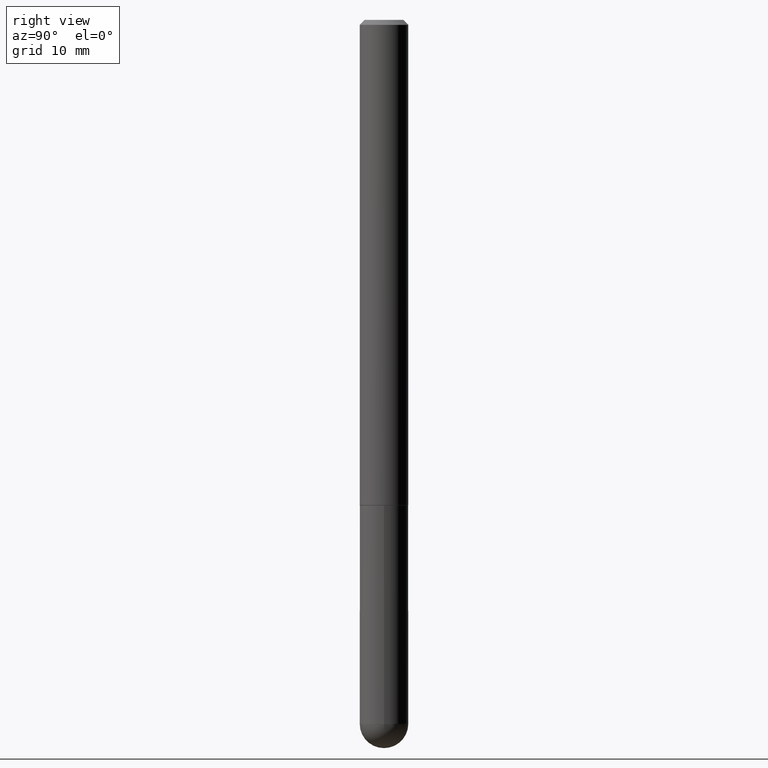
[diagram: clean part render]
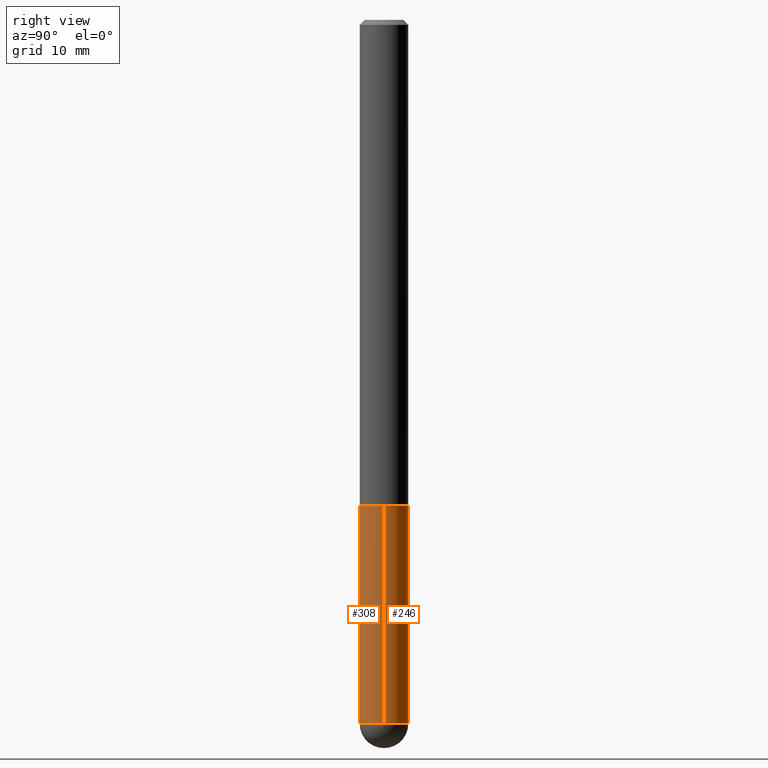
[diagram: same view with one multi-face feature highlighted, each face labeled with its STEP entity id]
A machine part, right view. The highlighted faces form ONE feature: a constant-radius fillet chain: 2 tangent blend faces with common blend radius 2.5006 mm. The faces share edges in the B-rep.
Their STEP definitions:
[1] entity #246 (Cylinder):
#3 = ORIENTED_EDGE ( 'NONE', *, *, #26, .T. ) ;
#4 = CARTESIAN_POINT ( 'NONE',  ( 6.874726756182819798E-16, 0.09844999999998993445, -2.854350000000000165 ) ) ;
#8 = CARTESIAN_POINT ( 'NONE',  ( 0.09844999999999998197, -6.874726756182128559E-16, 4.800596035771097813E-30 ) ) ;
#18 = CARTESIAN_POINT ( 'NONE',  ( 4.813905344975440714E-29, -6.872981015512730918E-15, -1.968499999999999694 ) ) ;
#26 = EDGE_CURVE ( 'NONE', #376, #54, #104, .T. ) ;
#27 = EDGE_CURVE ( 'NONE', #179, #233, #86, .T. ) ;
#30 = ORIENTED_EDGE ( 'NONE', *, *, #235, .F. ) ;
#43 = CARTESIAN_POINT ( 'NONE',  ( 6.980223886934544207E-29, -9.965909759526929881E-15, -2.854349999999999721 ) ) ;
#53 = CARTESIAN_POINT ( 'NONE',  ( 6.980223886934544207E-29, -9.965909759526929881E-15, -2.854349999999999721 ) ) ;
#54 = VERTEX_POINT ( 'NONE', #172 ) ;
#74 = CARTESIAN_POINT ( 'NONE',  ( -0.09844999999999998197, -7.719916064164013473E-15, -2.854349999999999721 ) ) ;
#77 = EDGE_LOOP ( 'NONE', ( #392, #3, #130, #30, #297 ) ) ;
#86 = CIRCLE ( 'NONE', #331, 0.09844999999999998197 ) ;
#102 = VERTEX_POINT ( 'NONE', #209 ) ;
#104 = LINE ( 'NONE', #220, #265 ) ;
#122 = CYLINDRICAL_SURFACE ( 'NONE', #391, 0.09844999999999998197 ) ;
#124 = CIRCLE ( 'NONE', #171, 0.09844999999999999585 ) ;
#129 = DIRECTION ( 'NONE',  ( 1.000000000000000000, -6.982962677686276177E-15, 0.000000000000000000 ) ) ;
#130 = ORIENTED_EDGE ( 'NONE', *, *, #339, .F. ) ;
#137 = DIRECTION ( 'NONE',  ( -2.445468806185136597E-29, 3.491481338843145583E-15, 1.000000000000000000 ) ) ;
#158 = DIRECTION ( 'NONE',  ( -2.445468806185136877E-29, 3.491481338843145188E-15, 1.000000000000000000 ) ) ;
#169 = DIRECTION ( 'NONE',  ( 1.000000000000000000, -6.982962677686276177E-15, 0.000000000000000000 ) ) ;
#171 = AXIS2_PLACEMENT_3D ( 'NONE', #18, #137, #317 ) ;
#172 = CARTESIAN_POINT ( 'NONE',  ( -0.09844999999999999585, -7.719916064164011895E-15, -1.968499999999999694 ) ) ;
#179 = VERTEX_POINT ( 'NONE', #216 ) ;
#201 = DIRECTION ( 'NONE',  ( -2.445468806185136877E-29, 3.491481338843145188E-15, 1.000000000000000000 ) ) ;
#209 = CARTESIAN_POINT ( 'NONE',  ( 0.09844999999999999585, -7.560453691130944267E-15, -1.968499999999999694 ) ) ;
#214 = FACE_OUTER_BOUND ( 'NONE', #77, .T. ) ;
#216 = CARTESIAN_POINT ( 'NONE',  ( 0.09844999999999998197, -9.106918063138045721E-15, -2.854349999999999721 ) ) ;
#218 = CARTESIAN_POINT ( 'NONE',  ( 0.000000000000000000, 0.000000000000000000, 0.000000000000000000 ) ) ;
#220 = CARTESIAN_POINT ( 'NONE',  ( -0.09844999999999998197, 6.995293233558185049E-16, -4.842691596355953341E-30 ) ) ;
#221 = DIRECTION ( 'NONE',  ( -2.445468806185136597E-29, 3.491481338843145583E-15, 1.000000000000000000 ) ) ;
#233 = VERTEX_POINT ( 'NONE', #4 ) ;
#235 = EDGE_CURVE ( 'NONE', #179, #102, #350, .T. ) ;
#243 = DIRECTION ( 'NONE',  ( 1.000000000000000000, -6.982962677686266711E-15, 4.876176775795935793E-29 ) ) ;
#246 = ADVANCED_FACE ( 'NONE', ( #214 ), #122, .T. ) ;
#265 = VECTOR ( 'NONE', #201, 39.37007874015748143 ) ;
#297 = ORIENTED_EDGE ( 'NONE', *, *, #27, .T. ) ;
#306 = VECTOR ( 'NONE', #158, 39.37007874015748143 ) ;
#317 = DIRECTION ( 'NONE',  ( 1.000000000000000000, -6.982962677686265922E-15, 0.000000000000000000 ) ) ;
#331 = AXIS2_PLACEMENT_3D ( 'NONE', #53, #360, #169 ) ;
#339 = EDGE_CURVE ( 'NONE', #102, #54, #124, .T. ) ;
#350 = LINE ( 'NONE', #8, #306 ) ;
#353 = DIRECTION ( 'NONE',  ( -2.445468806185136597E-29, 3.491481338843145583E-15, 1.000000000000000000 ) ) ;
#360 = DIRECTION ( 'NONE',  ( -2.445468806185136597E-29, 3.491481338843145583E-15, 1.000000000000000000 ) ) ;
#367 = CIRCLE ( 'NONE', #409, 0.09844999999999998197 ) ;
#370 = EDGE_CURVE ( 'NONE', #233, #376, #367, .T. ) ;
#376 = VERTEX_POINT ( 'NONE', #74 ) ;
#391 = AXIS2_PLACEMENT_3D ( 'NONE', #218, #353, #243 ) ;
#392 = ORIENTED_EDGE ( 'NONE', *, *, #370, .T. ) ;
#409 = AXIS2_PLACEMENT_3D ( 'NONE', #43, #221, #129 ) ;
[2] entity #308 (Cylinder):
#8 = CARTESIAN_POINT ( 'NONE',  ( 0.09844999999999998197, -6.874726756182128559E-16, 4.800596035771097813E-30 ) ) ;
#23 = DIRECTION ( 'NONE',  ( 1.000000000000000000, -6.982962677686276177E-15, 0.000000000000000000 ) ) ;
#25 = CIRCLE ( 'NONE', #298, 0.09844999999999998197 ) ;
#26 = EDGE_CURVE ( 'NONE', #376, #54, #104, .T. ) ;
#29 = EDGE_LOOP ( 'NONE', ( #145, #88, #115, #352, #91 ) ) ;
#54 = VERTEX_POINT ( 'NONE', #172 ) ;
#56 = AXIS2_PLACEMENT_3D ( 'NONE', #379, #166, #315 ) ;
#73 = EDGE_CURVE ( 'NONE', #190, #179, #238, .T. ) ;
#74 = CARTESIAN_POINT ( 'NONE',  ( -0.09844999999999998197, -7.719916064164013473E-15, -2.854349999999999721 ) ) ;
#83 = DIRECTION ( 'NONE',  ( -2.445468806185136597E-29, 3.491481338843145583E-15, 1.000000000000000000 ) ) ;
#88 = ORIENTED_EDGE ( 'NONE', *, *, #241, .T. ) ;
#91 = ORIENTED_EDGE ( 'NONE', *, *, #296, .F. ) ;
#102 = VERTEX_POINT ( 'NONE', #209 ) ;
#104 = LINE ( 'NONE', #220, #265 ) ;
#115 = ORIENTED_EDGE ( 'NONE', *, *, #73, .T. ) ;
#141 = DIRECTION ( 'NONE',  ( -2.445468806185136597E-29, 3.491481338843145583E-15, 1.000000000000000000 ) ) ;
#145 = ORIENTED_EDGE ( 'NONE', *, *, #26, .F. ) ;
#155 = DIRECTION ( 'NONE',  ( 1.000000000000000000, -6.982962677686266711E-15, 4.876176775795935793E-29 ) ) ;
#158 = DIRECTION ( 'NONE',  ( -2.445468806185136877E-29, 3.491481338843145188E-15, 1.000000000000000000 ) ) ;
#166 = DIRECTION ( 'NONE',  ( -2.445468806185136597E-29, 3.491481338843145583E-15, 1.000000000000000000 ) ) ;
#172 = CARTESIAN_POINT ( 'NONE',  ( -0.09844999999999999585, -7.719916064164011895E-15, -1.968499999999999694 ) ) ;
#179 = VERTEX_POINT ( 'NONE', #216 ) ;
#190 = VERTEX_POINT ( 'NONE', #250 ) ;
#201 = DIRECTION ( 'NONE',  ( -2.445468806185136877E-29, 3.491481338843145188E-15, 1.000000000000000000 ) ) ;
#209 = CARTESIAN_POINT ( 'NONE',  ( 0.09844999999999999585, -7.560453691130944267E-15, -1.968499999999999694 ) ) ;
#216 = CARTESIAN_POINT ( 'NONE',  ( 0.09844999999999998197, -9.106918063138045721E-15, -2.854349999999999721 ) ) ;
#220 = CARTESIAN_POINT ( 'NONE',  ( -0.09844999999999998197, 6.995293233558185049E-16, -4.842691596355953341E-30 ) ) ;
#235 = EDGE_CURVE ( 'NONE', #179, #102, #350, .T. ) ;
#238 = CIRCLE ( 'NONE', #362, 0.09844999999999998197 ) ;
#241 = EDGE_CURVE ( 'NONE', #376, #190, #25, .T. ) ;
#245 = CYLINDRICAL_SURFACE ( 'NONE', #399, 0.09844999999999998197 ) ;
#248 = CARTESIAN_POINT ( 'NONE',  ( 0.000000000000000000, 0.000000000000000000, 0.000000000000000000 ) ) ;
#250 = CARTESIAN_POINT ( 'NONE',  ( -6.995293233557512545E-16, -0.09845000000001033480, -2.854349999999998833 ) ) ;
#254 = CARTESIAN_POINT ( 'NONE',  ( 6.980223886934544207E-29, -9.965909759526929881E-15, -2.854349999999999721 ) ) ;
#265 = VECTOR ( 'NONE', #201, 39.37007874015748143 ) ;
#296 = EDGE_CURVE ( 'NONE', #54, #102, #338, .T. ) ;
#298 = AXIS2_PLACEMENT_3D ( 'NONE', #377, #83, #384 ) ;
#306 = VECTOR ( 'NONE', #158, 39.37007874015748143 ) ;
#308 = ADVANCED_FACE ( 'NONE', ( #325 ), #245, .T. ) ;
#315 = DIRECTION ( 'NONE',  ( 1.000000000000000000, -6.982962677686265922E-15, 0.000000000000000000 ) ) ;
#325 = FACE_OUTER_BOUND ( 'NONE', #29, .T. ) ;
#338 = CIRCLE ( 'NONE', #56, 0.09844999999999999585 ) ;
#350 = LINE ( 'NONE', #8, #306 ) ;
#352 = ORIENTED_EDGE ( 'NONE', *, *, #235, .T. ) ;
#362 = AXIS2_PLACEMENT_3D ( 'NONE', #254, #141, #23 ) ;
#376 = VERTEX_POINT ( 'NONE', #74 ) ;
#377 = CARTESIAN_POINT ( 'NONE',  ( 6.980223886934544207E-29, -9.965909759526929881E-15, -2.854349999999999721 ) ) ;
#379 = CARTESIAN_POINT ( 'NONE',  ( 4.813905344975440714E-29, -6.872981015512730918E-15, -1.968499999999999694 ) ) ;
#384 = DIRECTION ( 'NONE',  ( 1.000000000000000000, -6.982962677686276177E-15, 0.000000000000000000 ) ) ;
#385 = DIRECTION ( 'NONE',  ( -2.445468806185136597E-29, 3.491481338843145583E-15, 1.000000000000000000 ) ) ;
#399 = AXIS2_PLACEMENT_3D ( 'NONE', #248, #385, #155 ) ;